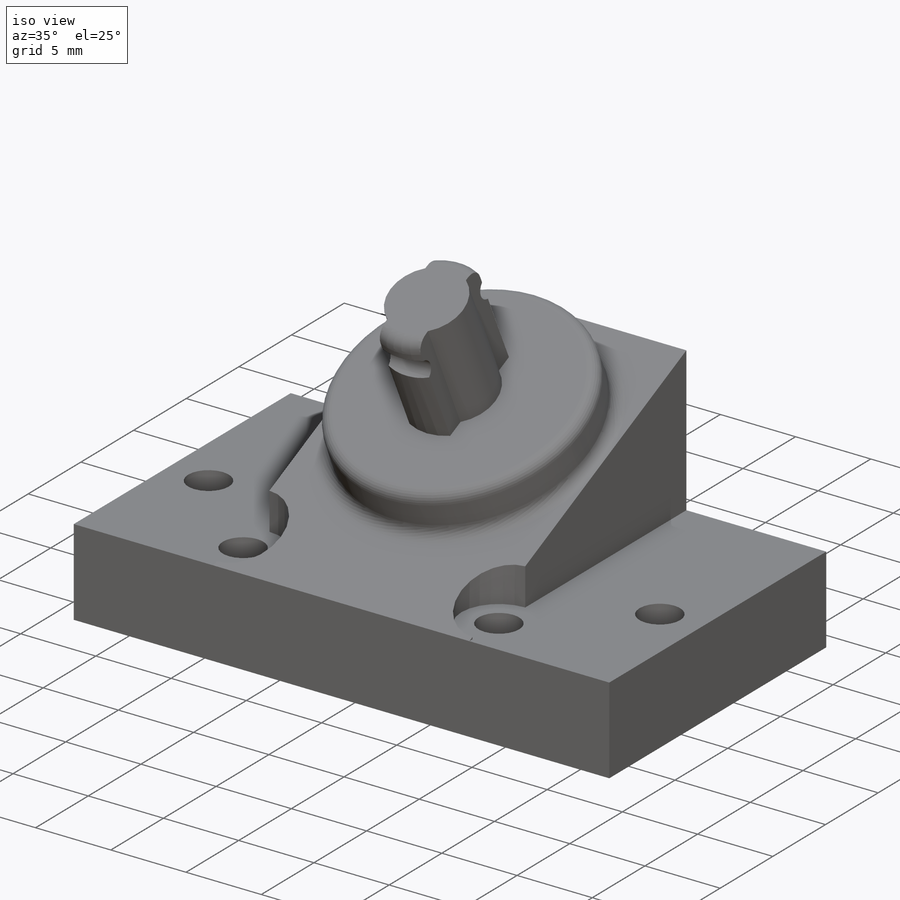
[diagram: iso view]
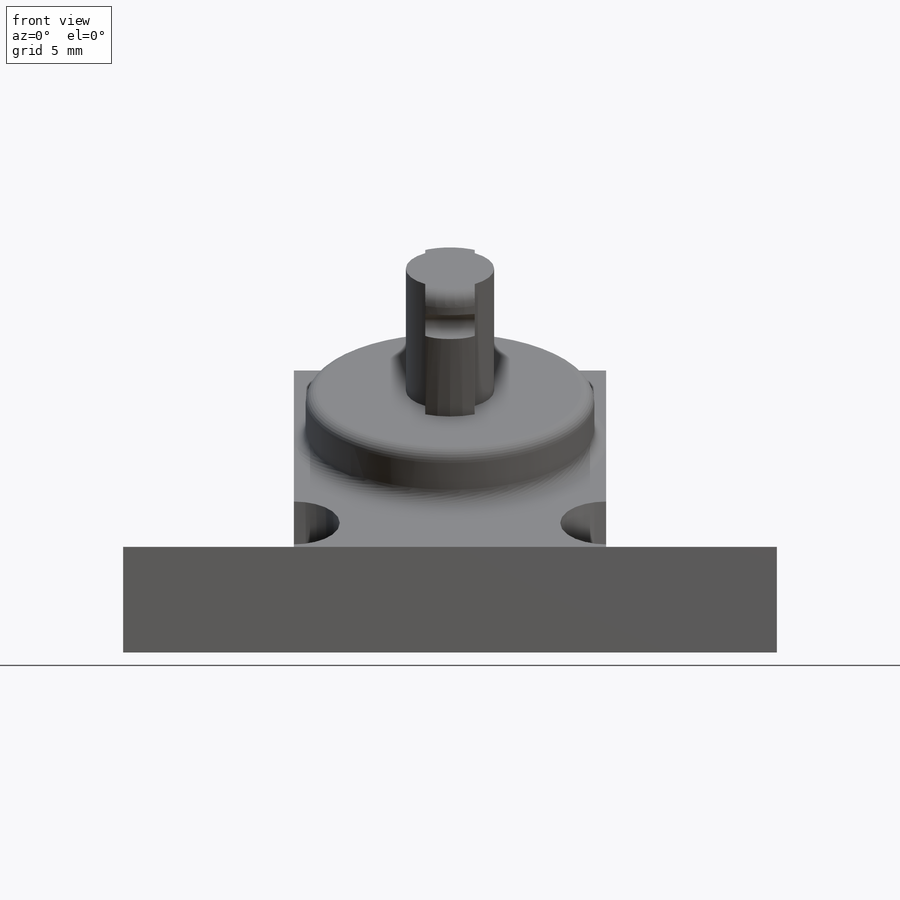
[diagram: front view]
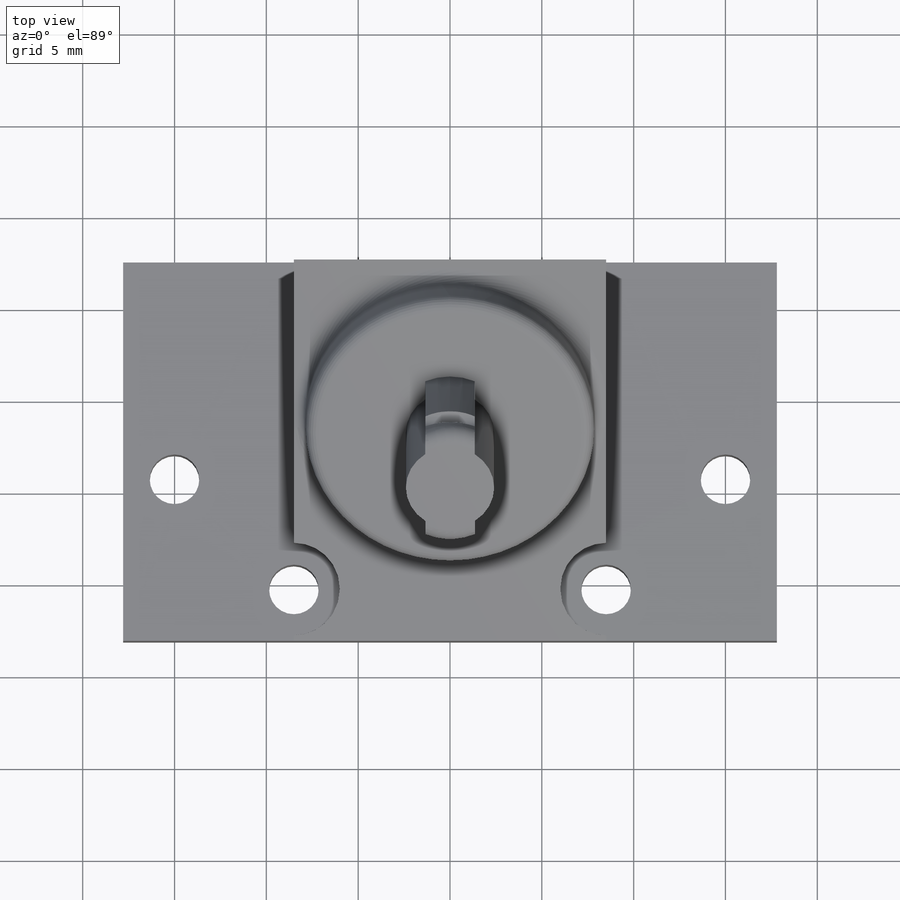
[diagram: top view]
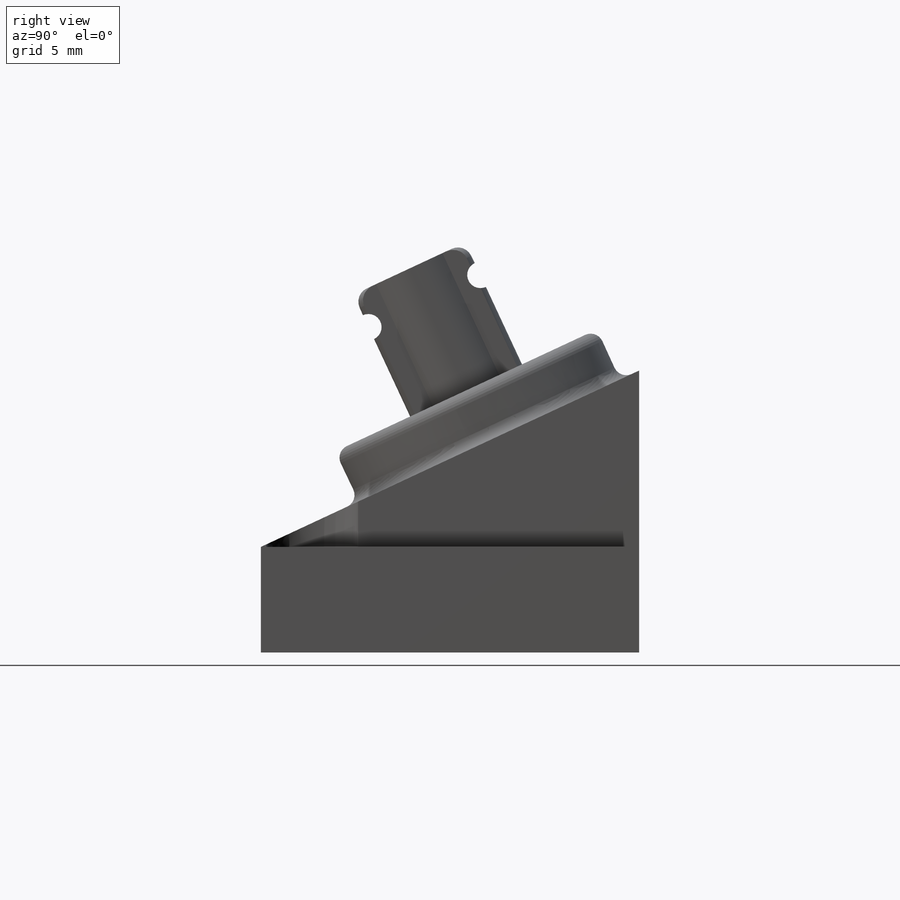
[diagram: right view]
SOLIDWORKS PART (.sldprt)
format: sldprt  version: not decoded by parser v0  size: 335,360 bytes
history: native  units: mm
features: sketch x8, extrude x5, cut_extrude x3, fillet x2, material x1 (+16 scaffold rows collapsed)
feature tree (35):
  scaffold x16  (default folders/planes/origin — collapsed)
  material  "Material <not specified>"
  sketch  "Sketch1"  dims[c1.D1=3.0mm c1.D2=24.4mm c1.D3=3.0mm c1.D4=2.75mm c2.D1=35.6mm]
  extrude  "Boss-Extrude1"  Depth=15mm
  sketch  "Sketch8"
  extrude  "Boss-Extrude4"  Depth=5.6mm
  sketch  "Sketch11"  dims[c1.D1=~20.874741mm c2.D1=25.0deg]
  extrude  "Boss-Extrude5"  Depth=17mm
  sketch  "Sketch3"  dims[D1=15.72mm D2=9.0mm]
  extrude  "Boss-Extrude2"  Depth=3mm
  fillet  "Fillet4"  Radius=0.7mm
  sketch  "Sketch5"  dims[c1.D1=4.81mm c1.D3=6.72mm c1.D2=2.7mm c2.D3=6.72mm]
  extrude  "Boss-Extrude3"  Depth=7.32mm
  sketch  "Sketch6"  dims[c1.D1=5.29mm c1.D2=5.37mm c2.D1=5.29mm]
  cut_extrude  "Cut-Extrude2"  [1 undecoded]
  fillet  "Fillet5"  Radius=0.8mm
  sketch  "Sketch9"  dims[D1=2.7mm D2=2.8mm D3=2.8mm D4=17.0mm D5=6.0mm]
  cut_extrude  "Cut-Extrude3"  [1 undecoded]
  sketch  "Sketch12"  dims[D1=5.0mm]
  cut_extrude  "Cut-Extrude4"  [1 undecoded]
decode coverage: 14 of 18 modeling features carry decoded parameters
note: ~ marks probable driven/reference dimensions
note: 3 parameter values undecoded
summary: no parameter record found for 3 features
note: suppression state not decoded; provenance and decode notes live in map.json
